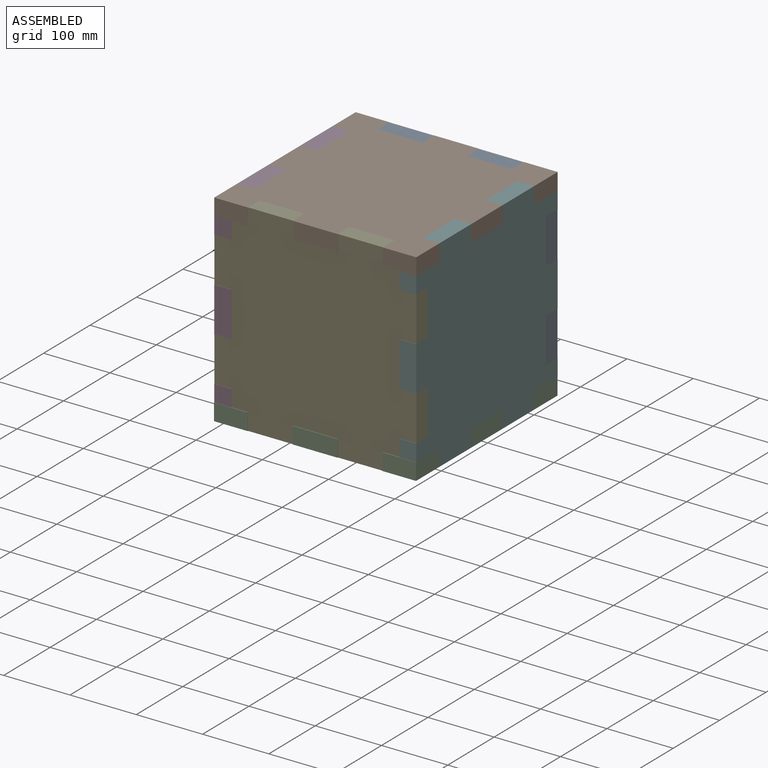
[diagram: assembled view]
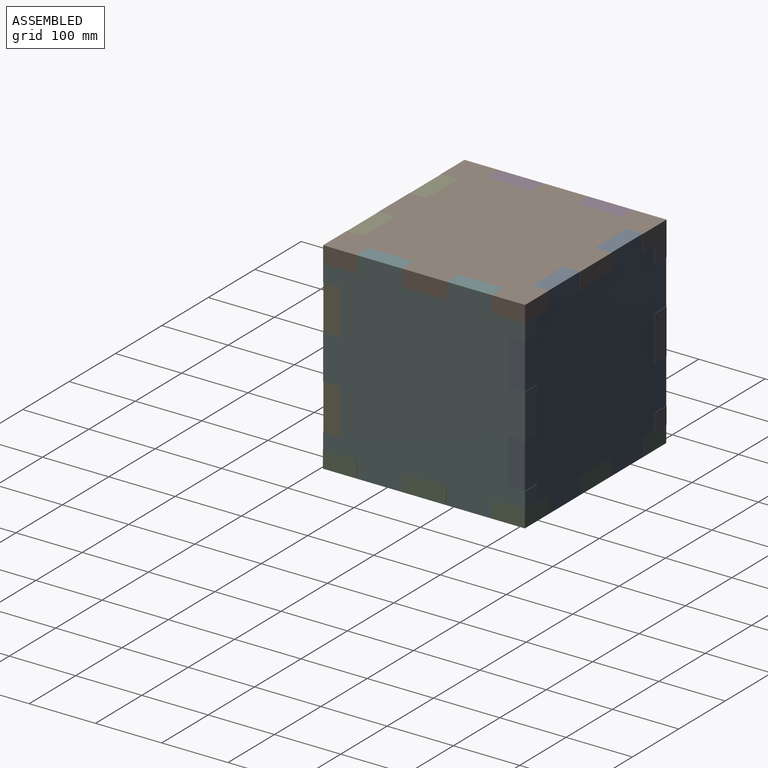
[diagram: assembled view, second angle]
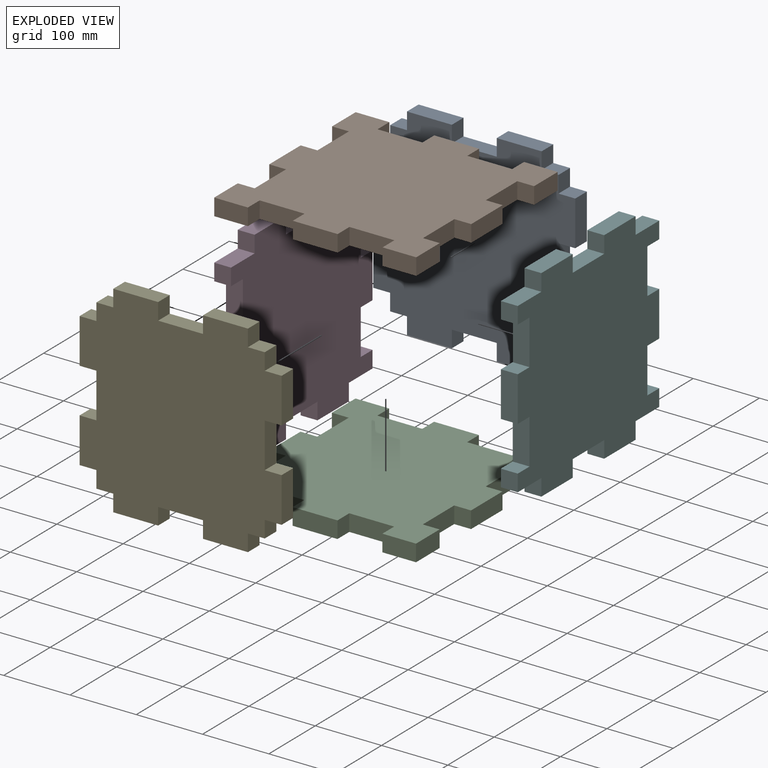
[diagram: exploded view]
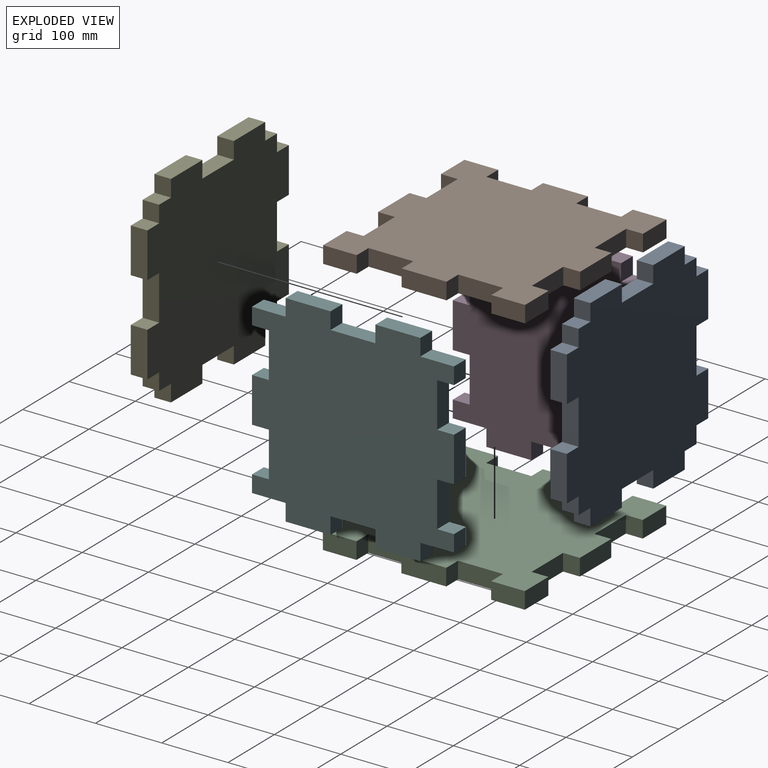
[diagram: exploded view, second angle]
ASSEMBLY  parts=6 mates=5
PART A: 38 faces, bbox 304.8x304.8x25 mm
  f0: plane 25.4x25mm, normal (0,-1,0), area 635mm2, adj f1,f35,f36,f37
  f1: plane 25.4x25mm, normal (-1,0,0), area 635mm2, adj f0,f2,f36,f37
  f2: plane 67.73x25mm, normal (0,-1,0), area 1693.3mm2, adj f1,f3,f36,f37
  f3: plane 25.4x25mm, normal (1,0,0), area 635mm2, adj f2,f4,f36,f37
  f4: plane 67.73x25mm, normal (0,-1,0), area 1693.3mm2, adj f3,f5,f36,f37
  f5: plane 25.4x25mm, normal (-1,0,0), area 635mm2, adj f4,f6,f36,f37
  f6: plane 67.73x25mm, normal (0,-1,0), area 1693.3mm2, adj f5,f7,f36,f37
  f7: plane 25.4x25mm, normal (1,0,0), area 635mm2, adj f6,f8,f36,f37
  f8: plane 25.4x25mm, normal (0,-1,0), area 635mm2, adj f7,f9,f36,f37
  f9: plane 25.4x25mm, normal (1,0,0), area 635mm2, adj f8,f10,f36,f37
  f10: plane 25.4x25mm, normal (0,-1,0), area 635mm2, adj f9,f11,f36,f37
  f11: plane 67.73x25mm, normal (1,0,0), area 1693.3mm2, adj f10,f12,f36,f37
  f12: plane 25.4x25mm, normal (0,1,0), area 635mm2, adj f11,f13,f36,f37
  f13: plane 67.73x25mm, normal (1,0,0), area 1693.3mm2, adj f12,f14,f36,f37
  f14: plane 25.4x25mm, normal (0,-1,0), area 635mm2, adj f13,f15,f36,f37
  f15: plane 67.73x25mm, normal (1,0,0), area 1693.3mm2, adj f14,f16,f36,f37
  f16: plane 25.4x25mm, normal (0,1,0), area 635mm2, adj f15,f17,f36,f37
  f17: plane 25.4x25mm, normal (1,0,0), area 635mm2, adj f16,f18,f36,f37
  f18: plane 25.4x25mm, normal (0,1,0), area 635mm2, adj f17,f19,f36,f37
  f19: plane 25.4x25mm, normal (1,0,0), area 635mm2, adj f18,f20,f36,f37
  f20: plane 67.73x25mm, normal (0,1,0), area 1693.3mm2, adj f19,f21,f36,f37
  f21: plane 25.4x25mm, normal (-1,0,0), area 635mm2, adj f20,f22,f36,f37
  f22: plane 67.73x25mm, normal (0,1,0), area 1693.3mm2, adj f21,f23,f36,f37
  f23: plane 25.4x25mm, normal (1,0,0), area 635mm2, adj f22,f24,f36,f37
  f24: plane 67.73x25mm, normal (0,1,0), area 1693.3mm2, adj f23,f25,f36,f37
  f25: plane 25.4x25mm, normal (-1,0,0), area 635mm2, adj f24,f26,f36,f37
  f26: plane 25.4x25mm, normal (0,1,0), area 635mm2, adj f25,f27,f36,f37
  f27: plane 25.4x25mm, normal (-1,0,0), area 635mm2, adj f26,f28,f36,f37
  f28: plane 25.4x25mm, normal (0,1,0), area 635mm2, adj f27,f29,f36,f37
  f29: plane 67.73x25mm, normal (-1,0,0), area 1693.3mm2, adj f28,f30,f36,f37
  f30: plane 25.4x25mm, normal (0,-1,0), area 635mm2, adj f29,f31,f36,f37
  f31: plane 67.73x25mm, normal (-1,0,0), area 1693.3mm2, adj f30,f32,f36,f37
  f32: plane 25.4x25mm, normal (0,1,0), area 635mm2, adj f31,f33,f36,f37
  f33: plane 67.73x25mm, normal (-1,0,0), area 1693.3mm2, adj f32,f34,f36,f37
  f34: plane 25.4x25mm, normal (0,-1,0), area 635mm2, adj f33,f35,f36,f37
  f35: plane 25.4x25mm, normal (-1,0,0), area 635mm2, adj f0,f34,f36,f37
  f36: plane 304.8x304.8mm, normal (0,0,1), area 78279.4mm2, adj f0,f1,f2,f3,f4,f5,f6,f7
  f37: plane 304.8x304.8mm, normal (0,0,-1), area 78279.4mm2, adj f0,f1,f2,f3,f4,f5,f6,f7
PART B: 38 faces, bbox 304.8x304.8x25.4 mm
  f0: plane 50.8x25.4mm, normal (-1,0,0), area 1290.3mm2, adj f1,f35,f36,f37
  f1: plane 25.4x25.4mm, normal (0,-1,0), area 645.2mm2, adj f0,f2,f36,f37
  f2: plane 67.73x25.4mm, normal (-1,0,0), area 1720.4mm2, adj f1,f3,f36,f37
  f3: plane 25.4x25.4mm, normal (0,1,0), area 645.2mm2, adj f2,f4,f36,f37
  f4: plane 67.73x25.4mm, normal (-1,0,0), area 1720.4mm2, adj f3,f5,f36,f37
  f5: plane 25.4x25.4mm, normal (0,-1,0), area 645.2mm2, adj f4,f6,f36,f37
  f6: plane 67.73x25.4mm, normal (-1,0,0), area 1720.4mm2, adj f5,f7,f36,f37
  f7: plane 25.4x25.4mm, normal (0,1,0), area 645.2mm2, adj f6,f8,f36,f37
  f8: plane 50.8x25.4mm, normal (-1,0,0), area 1290.3mm2, adj f7,f9,f36,f37
  f9: plane 50.8x25.4mm, normal (0,-1,0), area 1290.3mm2, adj f8,f10,f36,f37
  f10: plane 25.4x25.4mm, normal (1,0,0), area 645.2mm2, adj f9,f11,f36,f37
  f11: plane 67.73x25.4mm, normal (0,-1,0), area 1720.4mm2, adj f10,f12,f36,f37
  f12: plane 25.4x25.4mm, normal (-1,0,0), area 645.2mm2, adj f11,f13,f36,f37
  f13: plane 67.73x25.4mm, normal (0,-1,0), area 1720.4mm2, adj f12,f14,f36,f37
  f14: plane 25.4x25.4mm, normal (1,0,0), area 645.2mm2, adj f13,f15,f36,f37
  f15: plane 67.73x25.4mm, normal (0,-1,0), area 1720.4mm2, adj f14,f16,f36,f37
  f16: plane 25.4x25.4mm, normal (-1,0,0), area 645.2mm2, adj f15,f17,f36,f37
  f17: plane 50.8x25.4mm, normal (0,-1,0), area 1290.3mm2, adj f16,f18,f36,f37
  f18: plane 50.8x25.4mm, normal (1,0,0), area 1290.3mm2, adj f17,f19,f36,f37
  f19: plane 25.4x25.4mm, normal (0,1,0), area 645.2mm2, adj f18,f20,f36,f37
  f20: plane 67.73x25.4mm, normal (1,0,0), area 1720.4mm2, adj f19,f21,f36,f37
  f21: plane 25.4x25.4mm, normal (0,-1,0), area 645.2mm2, adj f20,f22,f36,f37
  f22: plane 67.73x25.4mm, normal (1,0,0), area 1720.4mm2, adj f21,f23,f36,f37
  f23: plane 25.4x25.4mm, normal (0,1,0), area 645.2mm2, adj f22,f24,f36,f37
  f24: plane 67.73x25.4mm, normal (1,0,0), area 1720.4mm2, adj f23,f25,f36,f37
  f25: plane 25.4x25.4mm, normal (0,-1,0), area 645.2mm2, adj f24,f26,f36,f37
  f26: plane 50.8x25.4mm, normal (1,0,0), area 1290.3mm2, adj f25,f27,f36,f37
  f27: plane 50.8x25.4mm, normal (0,1,0), area 1290.3mm2, adj f26,f28,f36,f37
  f28: plane 25.4x25.4mm, normal (-1,0,0), area 645.2mm2, adj f27,f29,f36,f37
  f29: plane 67.73x25.4mm, normal (0,1,0), area 1720.4mm2, adj f28,f30,f36,f37
  f30: plane 25.4x25.4mm, normal (1,0,0), area 645.2mm2, adj f29,f31,f36,f37
  f31: plane 67.73x25.4mm, normal (0,1,0), area 1720.4mm2, adj f30,f32,f36,f37
  f32: plane 25.4x25.4mm, normal (-1,0,0), area 645.2mm2, adj f31,f33,f36,f37
  f33: plane 67.73x25.4mm, normal (0,1,0), area 1720.4mm2, adj f32,f34,f36,f37
  f34: plane 25.4x25.4mm, normal (1,0,0), area 645.2mm2, adj f33,f35,f36,f37
  f35: plane 50.8x25.4mm, normal (0,1,0), area 1290.3mm2, adj f0,f34,f36,f37
  f36: plane 304.8x304.8mm, normal (0,0,1), area 79139.6mm2, adj f0,f1,f2,f3,f4,f5,f6,f7
  f37: plane 304.8x304.8mm, normal (0,0,-1), area 79139.6mm2, adj f0,f1,f2,f3,f4,f5,f6,f7
PART C: same geometry as B
PART D: 38 faces, bbox 304.8x304.8x25.4 mm
  f0: plane 67.73x25.4mm, normal (1,0,0), area 1720.4mm2, adj f1,f35,f36,f37
  f1: plane 25.4x25.4mm, normal (0,1,0), area 645.2mm2, adj f0,f2,f36,f37
  f2: plane 67.73x25.4mm, normal (1,0,0), area 1720.4mm2, adj f1,f3,f36,f37
  f3: plane 25.4x25.4mm, normal (0,-1,0), area 645.2mm2, adj f2,f4,f36,f37
  f4: plane 67.73x25.4mm, normal (1,0,0), area 1720.4mm2, adj f3,f5,f36,f37
  f5: plane 25.4x25.4mm, normal (0,1,0), area 645.2mm2, adj f4,f6,f36,f37
  f6: plane 50.8x25.4mm, normal (1,0,0), area 1290.3mm2, adj f5,f7,f36,f37
  f7: plane 25.4x25.4mm, normal (0,1,0), area 645.2mm2, adj f6,f8,f36,f37
  f8: plane 25.4x25.4mm, normal (-1,0,0), area 645.2mm2, adj f7,f9,f36,f37
  f9: plane 67.73x25.4mm, normal (0,1,0), area 1720.4mm2, adj f8,f10,f36,f37
  f10: plane 25.4x25.4mm, normal (1,0,0), area 645.2mm2, adj f9,f11,f36,f37
  f11: plane 67.73x25.4mm, normal (0,1,0), area 1720.4mm2, adj f10,f12,f36,f37
  f12: plane 25.4x25.4mm, normal (-1,0,0), area 645.2mm2, adj f11,f13,f36,f37
  f13: plane 67.73x25.4mm, normal (0,1,0), area 1720.4mm2, adj f12,f14,f36,f37
  f14: plane 25.4x25.4mm, normal (1,0,0), area 645.2mm2, adj f13,f15,f36,f37
  f15: plane 25.4x25.4mm, normal (0,1,0), area 645.2mm2, adj f14,f16,f36,f37
  f16: plane 50.8x25.4mm, normal (-1,0,0), area 1290.3mm2, adj f15,f17,f36,f37
  f17: plane 25.4x25.4mm, normal (0,1,0), area 645.2mm2, adj f16,f18,f36,f37
  f18: plane 67.73x25.4mm, normal (-1,0,0), area 1720.4mm2, adj f17,f19,f36,f37
  f19: plane 25.4x25.4mm, normal (0,-1,0), area 645.2mm2, adj f18,f20,f36,f37
  f20: plane 67.73x25.4mm, normal (-1,0,0), area 1720.4mm2, adj f19,f21,f36,f37
  f21: plane 25.4x25.4mm, normal (0,1,0), area 645.2mm2, adj f20,f22,f36,f37
  f22: plane 67.73x25.4mm, normal (-1,0,0), area 1720.4mm2, adj f21,f23,f36,f37
  f23: plane 25.4x25.4mm, normal (0,-1,0), area 645.2mm2, adj f22,f24,f36,f37
  f24: plane 50.8x25.4mm, normal (-1,0,0), area 1290.3mm2, adj f23,f25,f36,f37
  f25: plane 25.4x25.4mm, normal (0,-1,0), area 645.2mm2, adj f24,f26,f36,f37
  f26: plane 25.4x25.4mm, normal (1,0,0), area 645.2mm2, adj f25,f27,f36,f37
  f27: plane 67.73x25.4mm, normal (0,-1,0), area 1720.4mm2, adj f26,f28,f36,f37
  f28: plane 25.4x25.4mm, normal (-1,0,0), area 645.2mm2, adj f27,f29,f36,f37
  f29: plane 67.73x25.4mm, normal (0,-1,0), area 1720.4mm2, adj f28,f30,f36,f37
  f30: plane 25.4x25.4mm, normal (1,0,0), area 645.2mm2, adj f29,f31,f36,f37
  f31: plane 67.73x25.4mm, normal (0,-1,0), area 1720.4mm2, adj f30,f32,f36,f37
  f32: plane 25.4x25.4mm, normal (-1,0,0), area 645.2mm2, adj f31,f33,f36,f37
  f33: plane 25.4x25.4mm, normal (0,-1,0), area 645.2mm2, adj f32,f34,f36,f37
  f34: plane 50.8x25.4mm, normal (1,0,0), area 1290.3mm2, adj f33,f35,f36,f37
  f35: plane 25.4x25.4mm, normal (0,-1,0), area 645.2mm2, adj f0,f34,f36,f37
  f36: plane 304.8x304.8mm, normal (0,0,1), area 77419.2mm2, adj f0,f1,f2,f3,f4,f5,f6,f7
  f37: plane 304.8x304.8mm, normal (0,0,-1), area 77419.2mm2, adj f0,f1,f2,f3,f4,f5,f6,f7
PART E: same geometry as A
PART F: same geometry as D
PLACE A rot(axis=(1,0,0),90deg) t=(-114.89,54.05,423.82)mm
PLACE B t=(-114.89,-97.95,220.62)mm
PLACE C t=(-114.89,-98.35,-58.78)mm
PLACE D rot(axis=(0,-1,0),90deg) t=(-241.89,-97.95,423.82)mm
PLACE E rot(axis=(1,0,0),90deg) t=(-114.89,-224.95,423.82)mm
PLACE F rot(axis=(0,-1,0),90deg) t=(37.51,-97.95,423.82)mm
MATE fastened F.f36 <-> B.f20  axis (-1,0,0) through (12.11,-165.69,246.02)mm
MATE fastened B.f37 <-> D.f2  axis (0,0,-1) through (-267.29,-97.95,220.62)mm
MATE fastened C.f36 <-> A.f4  axis (0,0,1) through (-114.89,54.05,-33.38)mm
MATE fastened E.f37 <-> B.f11  axis (0,1,0) through (-182.63,-224.95,246.02)mm
MATE fastened A.f36 <-> B.f33  axis (0,-1,0) through (-182.63,29.05,246.02)mm
